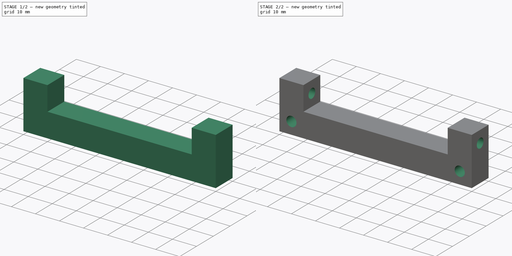
[diagram: build sequence overview — one tinted view per stage of 2, left to right]
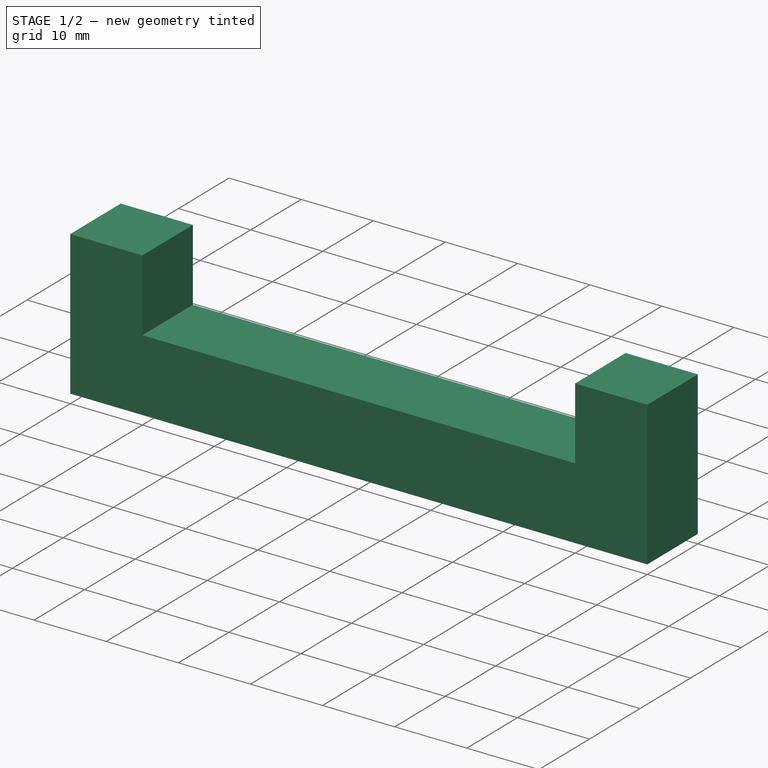
[diagram: stage 1 of 2 — iso view after this stage's code; geometry added in this stage tinted green]
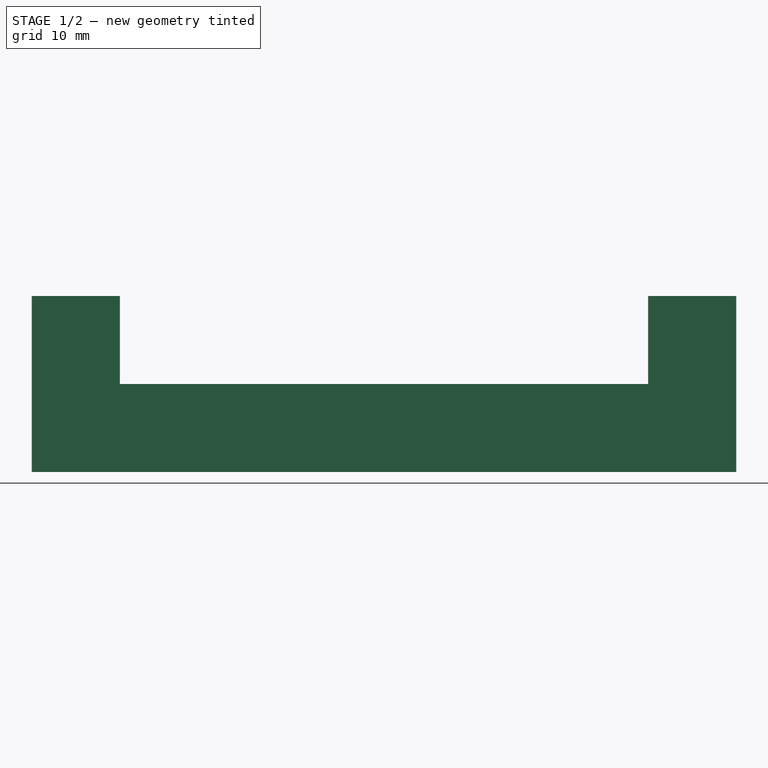
[diagram: stage 1 of 2 — front view after this stage's code; geometry added in this stage tinted green]
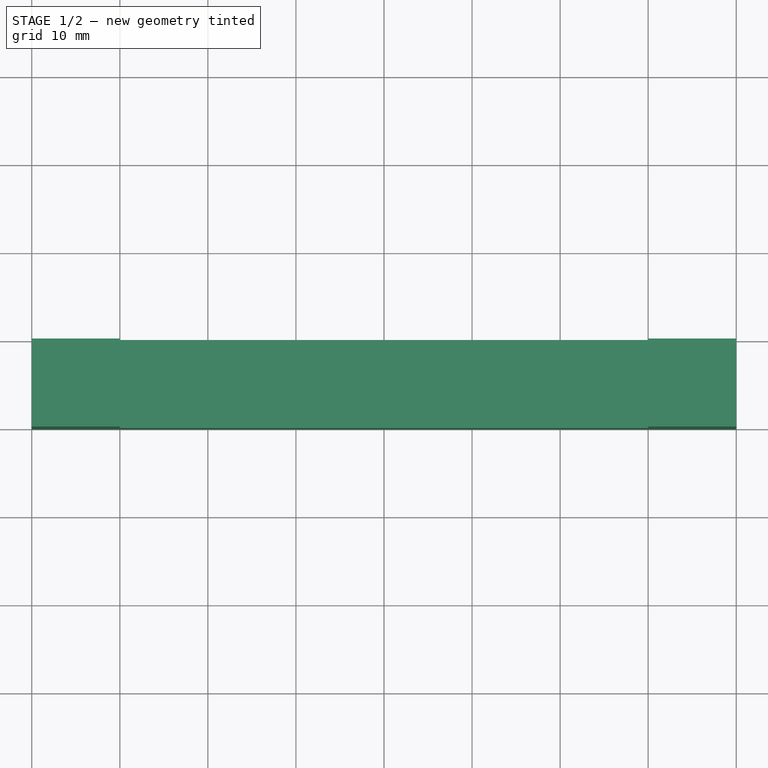
[diagram: stage 1 of 2 — top view after this stage's code; geometry added in this stage tinted green]
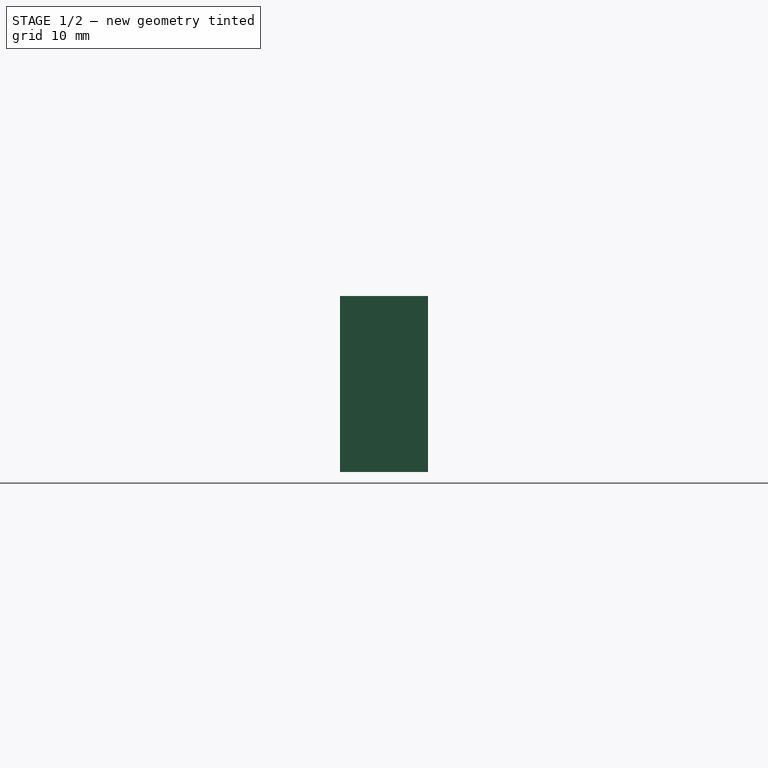
[diagram: stage 1 of 2 — right view after this stage's code; geometry added in this stage tinted green]
FCSTD DOCUMENT  (FreeCAD 0.16R5231 (Git))
Label: AntiBulgeHingeP2
License: All rights reserved
LicenseURL: http://en.wikipedia.org/wiki/All_rights_reserved
objects: Sketcher::SketchObject×4, PartDesign::Pocket×3, PartDesign::Pad×1
note: 12 computed .brp shape members not serialized (recipe doc carries the construction recipe); baked Part::Feature solids carry a one-line shape summary decoded from their .brp

FEATURE [Sketcher::SketchObject] Sketch003
  sketch-geometry (4):
    g0: LineSegment StartX=0 StartY=0 StartZ=0 EndX=80 EndY=0 EndZ=0
    g1: LineSegment StartX=80 StartY=0 StartZ=0 EndX=80 EndY=10 EndZ=0
    g2: LineSegment StartX=80 StartY=10 StartZ=0 EndX=0 EndY=10 EndZ=0
    g3: LineSegment StartX=0 StartY=10 StartZ=0 EndX=0 EndY=0 EndZ=0
  constraints (11):
    c: Coincident(g0,g1)
    c: Coincident(g1,g2)
    c: Coincident(g2,g3)
    c: Coincident(g3,g0)
    c: Horizontal(g0)
    c: Horizontal(g2)
    c: Vertical(g1)
    c: Vertical(g3)
    c: Coincident(g0,g-1)
    c: DistanceX(g0) = 80
    c: DistanceY(g3) = -10
FEATURE [PartDesign::Pad] Pad002
  Length = 20
  Length2 = 100
  Sketch = -> Sketch003
  Type = 0
FEATURE [Sketcher::SketchObject] Sketch004
  ExternalGeometry = -> [Pad002]
  Placement = pos=(0,0,20) rot=(0,0,1;0rad)
  Support = -> Pad002 [Face6]
  sketch-geometry (4):
    g0: LineSegment StartX=10 StartY=10 StartZ=0 EndX=70 EndY=10 EndZ=0
    g1: LineSegment StartX=70 StartY=10 StartZ=0 EndX=70 EndY=0 EndZ=0
    g2: LineSegment StartX=70 StartY=0 StartZ=0 EndX=10 EndY=0 EndZ=0
    g3: LineSegment StartX=10 StartY=0 StartZ=0 EndX=10 EndY=10 EndZ=0
  constraints (12):
    c: Coincident(g0,g1)
    c: Coincident(g1,g2)
    c: Coincident(g2,g3)
    c: Coincident(g3,g0)
    c: Horizontal(g0)
    c: Horizontal(g2)
    c: Vertical(g1)
    c: Vertical(g3)
    c: PointOnObject(g0,g-3)
    c: PointOnObject(g1,g-5)
    c: DistanceX(g-1,g2) = 10
    c: DistanceX(g1,g-5) = 10
FEATURE [PartDesign::Pocket] Pocket001
  Length = 10
  Sketch = -> Sketch004
  Type = 0
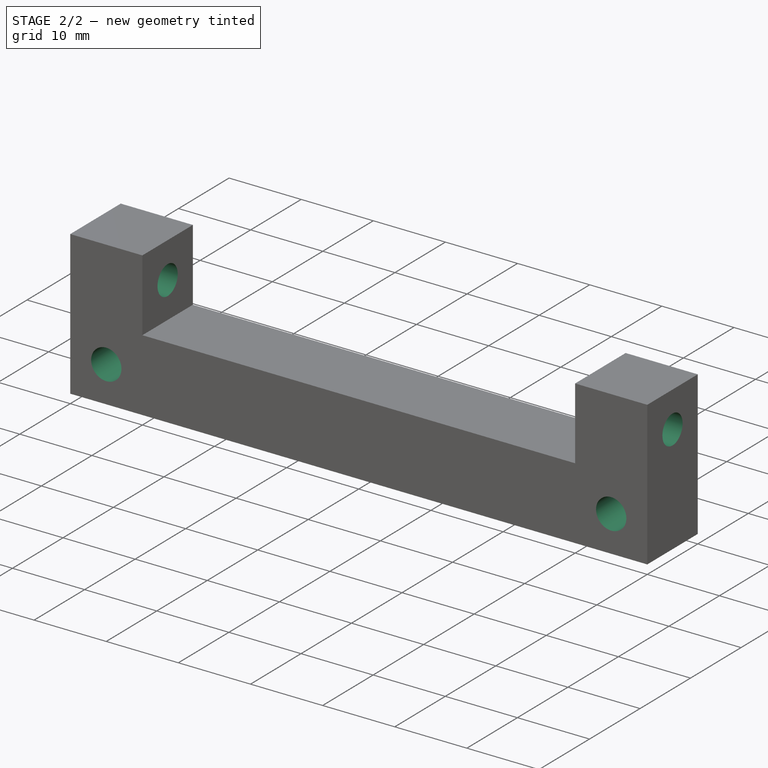
[diagram: stage 2 of 2 — iso view after this stage's code; geometry added in this stage tinted green]
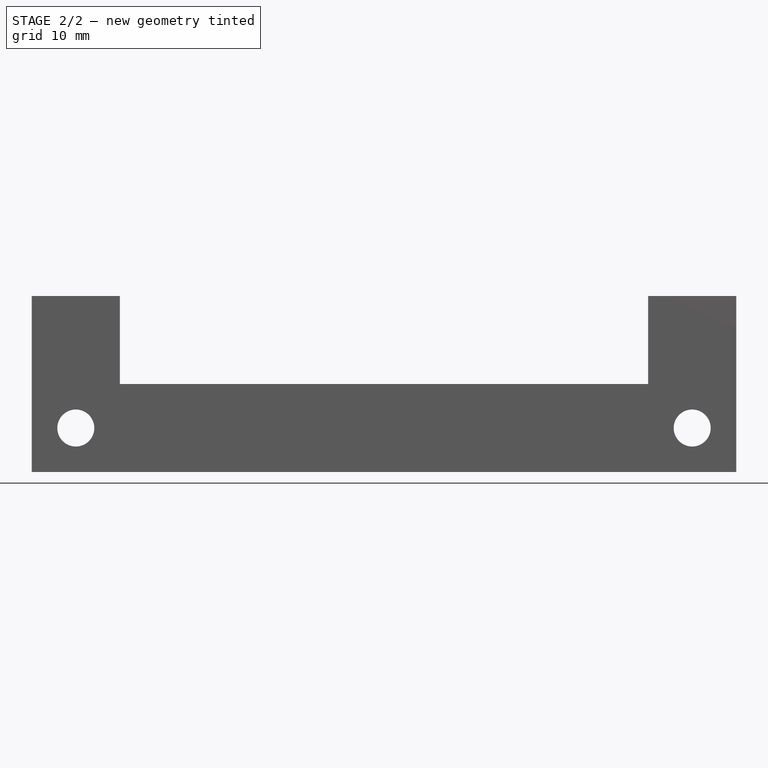
[diagram: stage 2 of 2 — front view after this stage's code; geometry added in this stage tinted green]
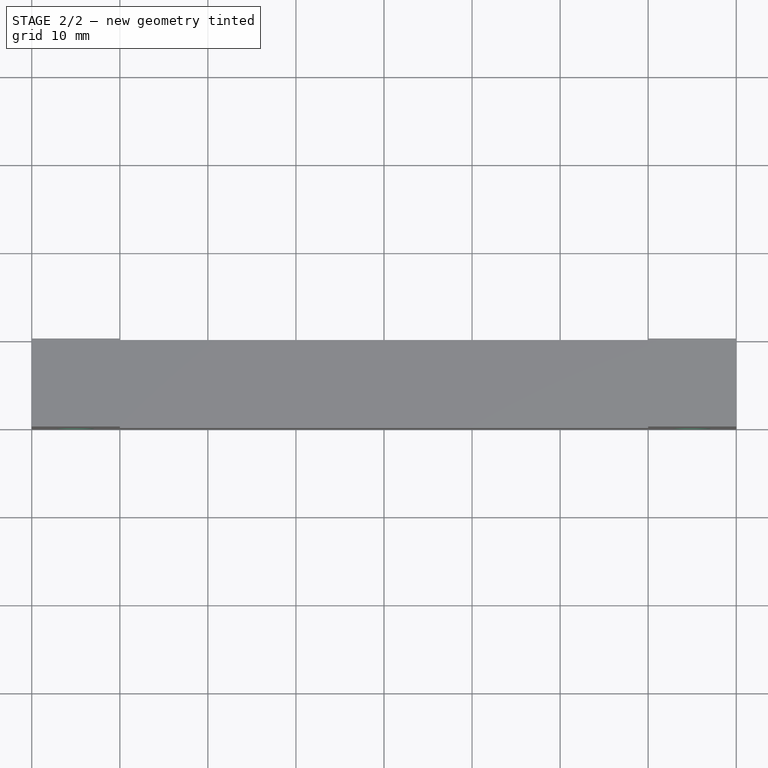
[diagram: stage 2 of 2 — top view after this stage's code; geometry added in this stage tinted green]
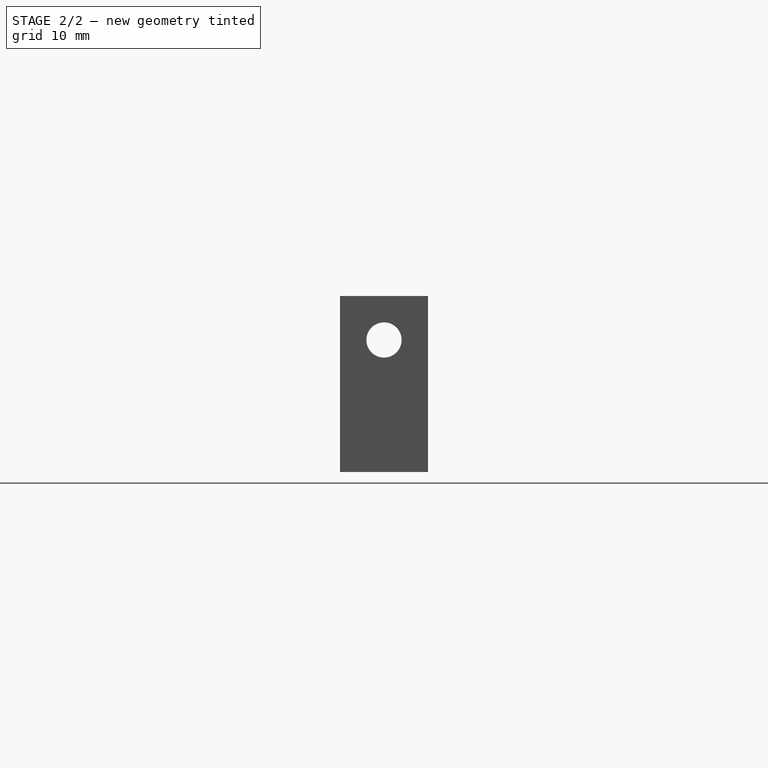
[diagram: stage 2 of 2 — right view after this stage's code; geometry added in this stage tinted green]
FEATURE [Sketcher::SketchObject] Sketch005
  ExternalGeometry = -> [Pocket001]
  Placement = pos=(80,0,0) rot=(0.57735,0.57735,0.57735;2.0944rad)
  Support = -> Pocket001 [Face3]
  sketch-geometry (2):
    g0: LineSegment [constr] StartX=10 StartY=20 StartZ=0 EndX=0 EndY=10 EndZ=0
    g1: Circle CenterX=5 CenterY=15 CenterZ=0 NormalX=0 NormalY=0 NormalZ=1 Radius=2
  constraints (3):
    c: PointOnObject(g1,g0)
    c: Symmetric(g0,g0,g1)
    c: Radius(g1) = 2
FEATURE [PartDesign::Pocket] Pocket
  Length = 30
  Sketch = -> Sketch005
  Type = 1
FEATURE [Sketcher::SketchObject] Sketch
  ExternalGeometry = -> [Pocket]
  Placement = pos=(0,0,0) rot=(1,0,0;1.5708rad)
  Support = -> Pocket [Face1]
  sketch-geometry (4):
    g0: Circle CenterX=75 CenterY=5 CenterZ=0 NormalX=0 NormalY=0 NormalZ=1 Radius=2.1
    g1: Circle CenterX=5 CenterY=5 CenterZ=0 NormalX=0 NormalY=0 NormalZ=1 Radius=2.1
    g2: LineSegment [constr] StartX=10 StartY=10 StartZ=0 EndX=0 EndY=0 EndZ=0
    g3: LineSegment [constr] StartX=70 StartY=10 StartZ=0 EndX=80 EndY=0 EndZ=0
  constraints (8):
    c: Equal(g0,g1)
    c: Radius(g0) = 2.1
    c: Coincident(g2,g-4)
    c: Coincident(g2,g-1)
    c: Coincident(g3,g-5)
    c: Coincident(g3,g-6)
    c: Symmetric(g2,g2,g1)
    c: Symmetric(g3,g3,g0)
FEATURE [PartDesign::Pocket] Pocket002  label="AntiBulgeHingeP2"
  Length = 10
  Sketch = -> Sketch
  Type = 0
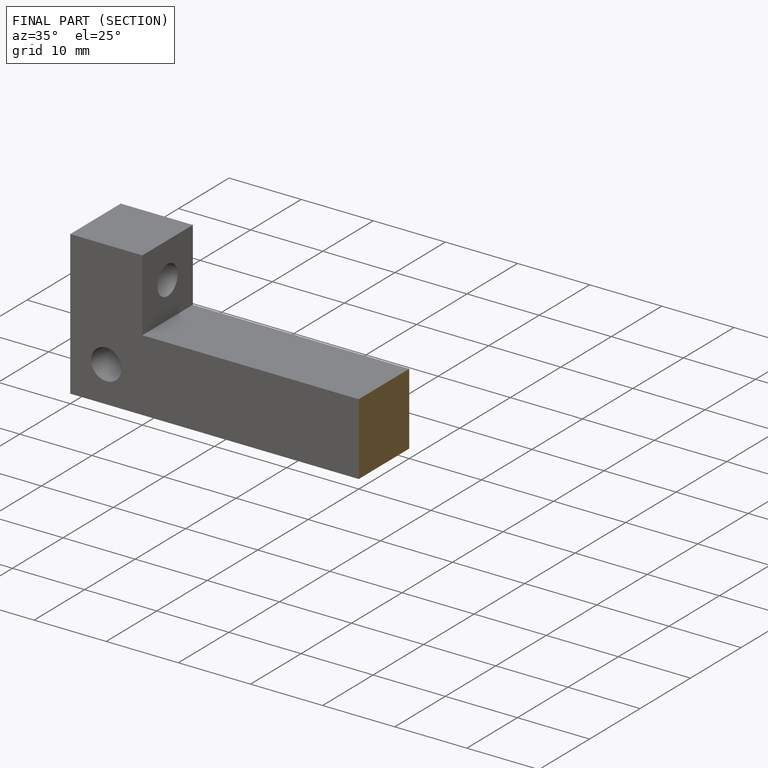
[diagram: finished part — half-section view (interior)]
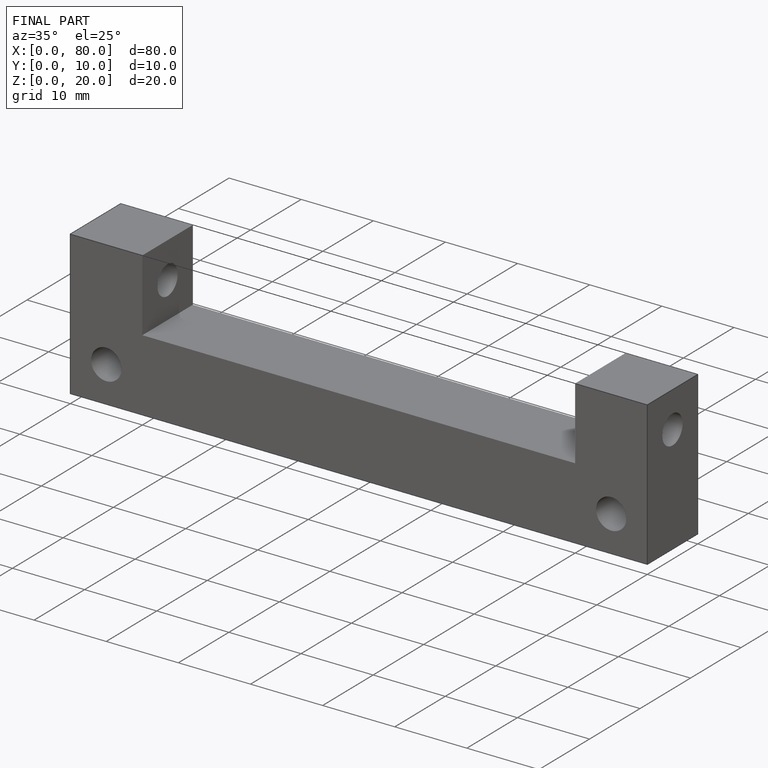
[diagram: finished part — iso view with bounding-box wireframe]
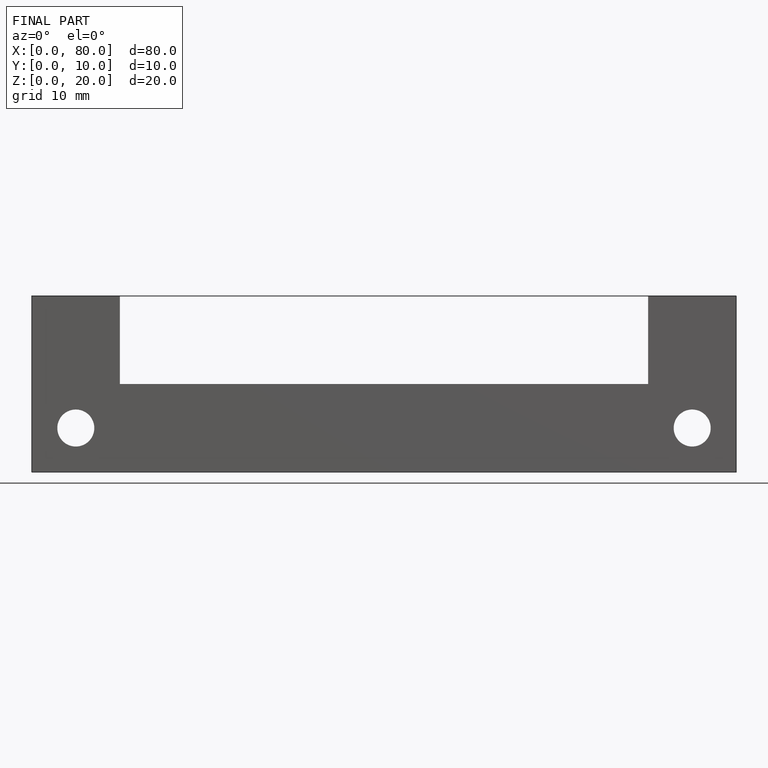
[diagram: finished part — front view with bounding-box wireframe]
